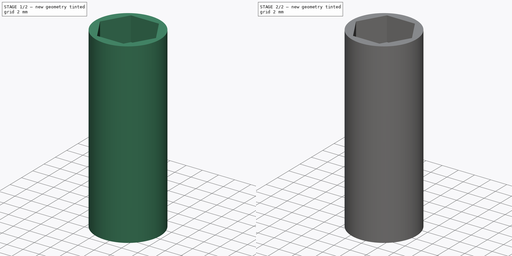
[diagram: build sequence overview — one tinted view per stage of 2, left to right]
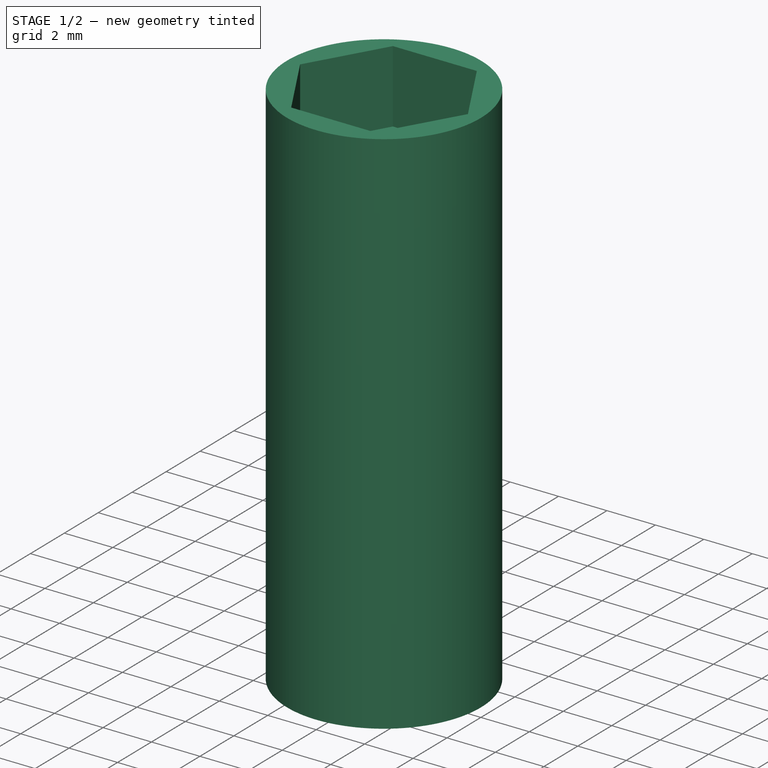
[diagram: stage 1 of 2 — iso view after this stage's code; geometry added in this stage tinted green]
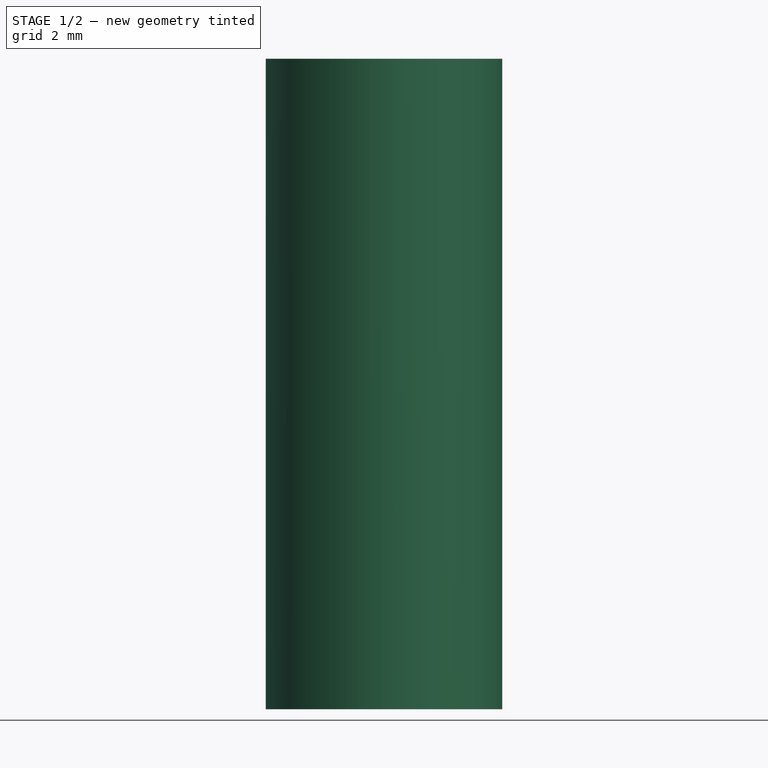
[diagram: stage 1 of 2 — front view after this stage's code; geometry added in this stage tinted green]
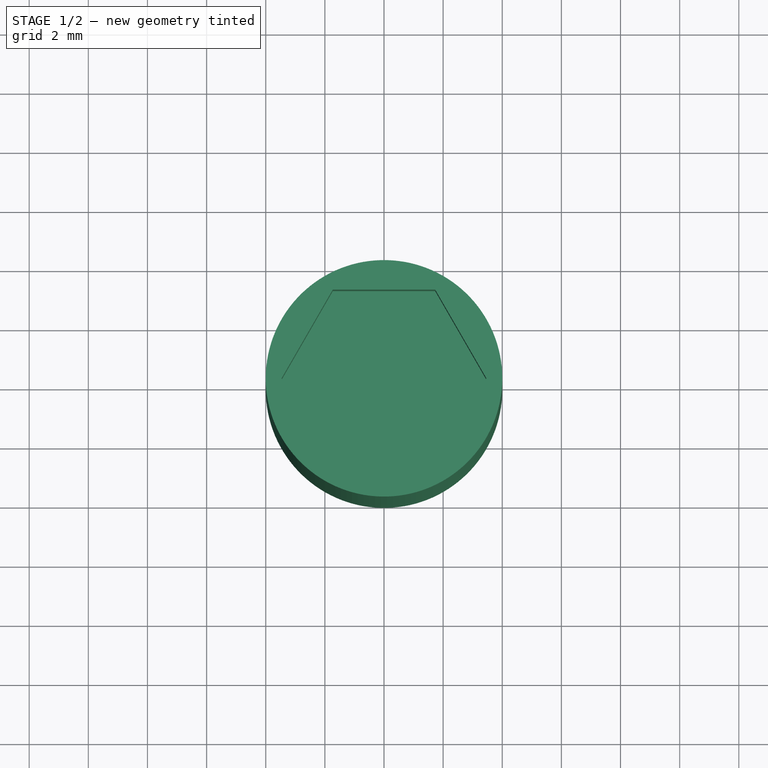
[diagram: stage 1 of 2 — top view after this stage's code; geometry added in this stage tinted green]
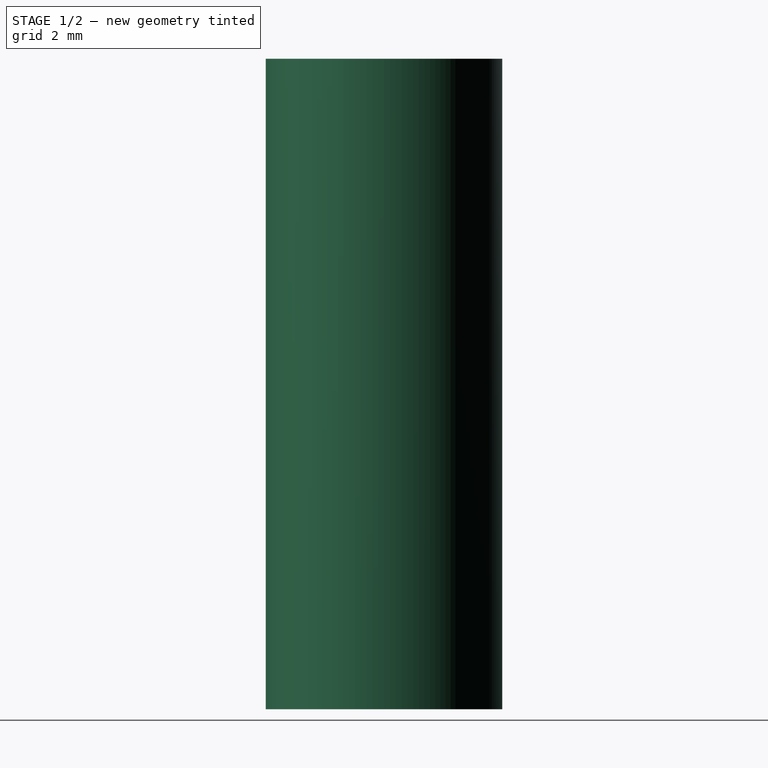
[diagram: stage 1 of 2 — right view after this stage's code; geometry added in this stage tinted green]
FCSTD DOCUMENT
Label: 6mmHex
objects: Sketcher::SketchObject×3, PartDesign::Pocket×2, PartDesign::Pad×1
note: 7 computed .brp shape members not serialized (recipe doc carries the construction recipe); baked Part::Feature solids carry a one-line shape summary decoded from their .brp

FEATURE [Sketcher::SketchObject] Sketch001
  sketch-geometry (1):
    g0: Circle CenterX=0 CenterY=0 CenterZ=0 NormalX=0 NormalY=0 NormalZ=1 Radius=4
  constraints (3):
    c: Radius(g0) = 4
    c: DistanceX(g0) = 0
    c: DistanceY(g0) = 0
FEATURE [PartDesign::Pad] Pad001
  Length = 22
  MirroredExtent = false
  Sketch = -> Sketch001
FEATURE [Sketcher::SketchObject] Sketch
  Placement = pos=(0,0,22) rot=(0,0,1;0rad)
  Support = -> Pad001 [Face3]
  sketch-geometry (12):
    g0: LineSegment StartX=-1.73205 StartY=3 StartZ=0 EndX=1.73205 EndY=3 EndZ=0
    g1: LineSegment StartX=1.73205 StartY=3 StartZ=0 EndX=3.4641 EndY=0 EndZ=0
    g2: LineSegment StartX=3.4641 StartY=0 StartZ=0 EndX=1.73205 EndY=-3 EndZ=0
    g3: LineSegment StartX=1.73205 StartY=-3 StartZ=0 EndX=-1.73205 EndY=-3 EndZ=0
    g4: LineSegment StartX=-1.73205 StartY=-3 StartZ=0 EndX=-3.4641 EndY=0 EndZ=0
    g5: LineSegment StartX=-3.4641 StartY=0 StartZ=0 EndX=-1.73205 EndY=3 EndZ=0
    g6: LineSegment [constr] StartX=-3.4641 StartY=0 StartZ=0 EndX=0 EndY=0 EndZ=0
    g7: LineSegment [constr] StartX=0 StartY=0 StartZ=0 EndX=3.4641 EndY=0 EndZ=0
    g8: LineSegment [constr] StartX=1.73205 StartY=3 StartZ=0 EndX=0 EndY=0 EndZ=0
    g9: LineSegment [constr] StartX=-1.73205 StartY=3 StartZ=0 EndX=0 EndY=0 EndZ=0
    g10: LineSegment [constr] StartX=-1.73205 StartY=-3 StartZ=0 EndX=0 EndY=0 EndZ=0
    g11: LineSegment [constr] StartX=0 StartY=0 StartZ=0 EndX=1.73205 EndY=-3 EndZ=0
  constraints (31):
    c: Horizontal(g0)
    c: Coincident(g0,g1)
    c: Coincident(g1,g2)
    c: Coincident(g2,g3)
    c: Horizontal(g3)
    c: Coincident(g3,g4)
    c: Coincident(g4,g5)
    c: Coincident(g5,g0)
    c: Parallel(g1,g4)
    c: Parallel(g5,g2)
    c: Horizontal(g6)
    c: Horizontal(g7)
    c: Coincident(g7,g6)
    c: Equal(g7,g6)
    c: Coincident(g7,g1)
    c: Coincident(g6,g4)
    c: Coincident(g9,g6)
    c: Coincident(g8,g6)
    c: Coincident(g9,g0)
    c: Coincident(g8,g0)
    c: Equal(g8,g9)
    c: Equal(g9,g6)
    c: Coincident(g11,g2)
    c: Coincident(g10,g3)
    c: Coincident(g10,g6)
    c: Coincident(g11,g6)
    c: Equal(g10,g6)
    c: Equal(g5,g0)
    c: DistanceX(g6) = 0
    c: DistanceY(g6) = 0
    c: DistanceY(g0,g3) = -6
FEATURE [PartDesign::Pocket] Pocket
  Length = 3
  Sketch = -> Sketch
  Type = 0
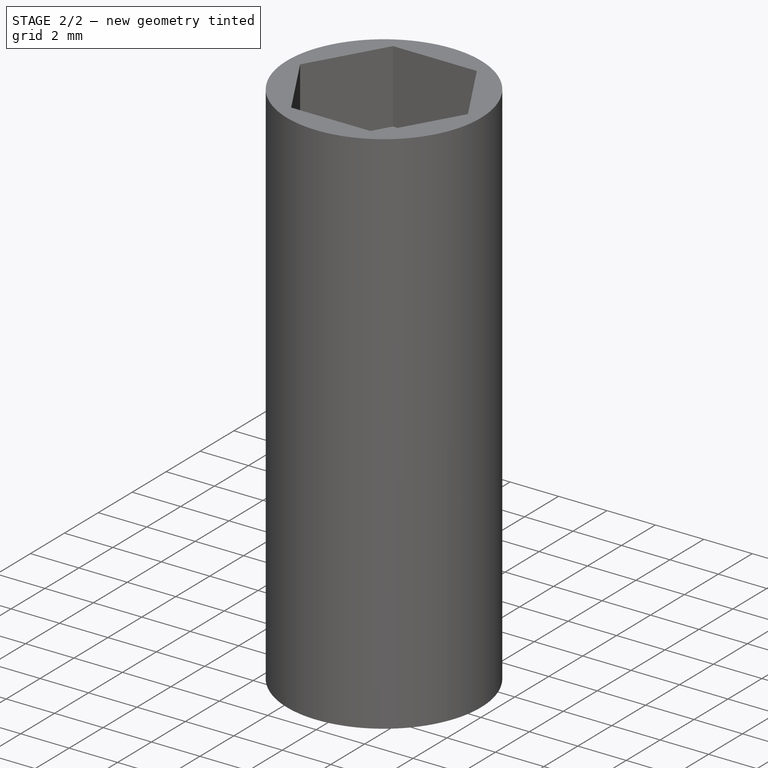
[diagram: stage 2 of 2 — iso view after this stage's code; geometry added in this stage tinted green]
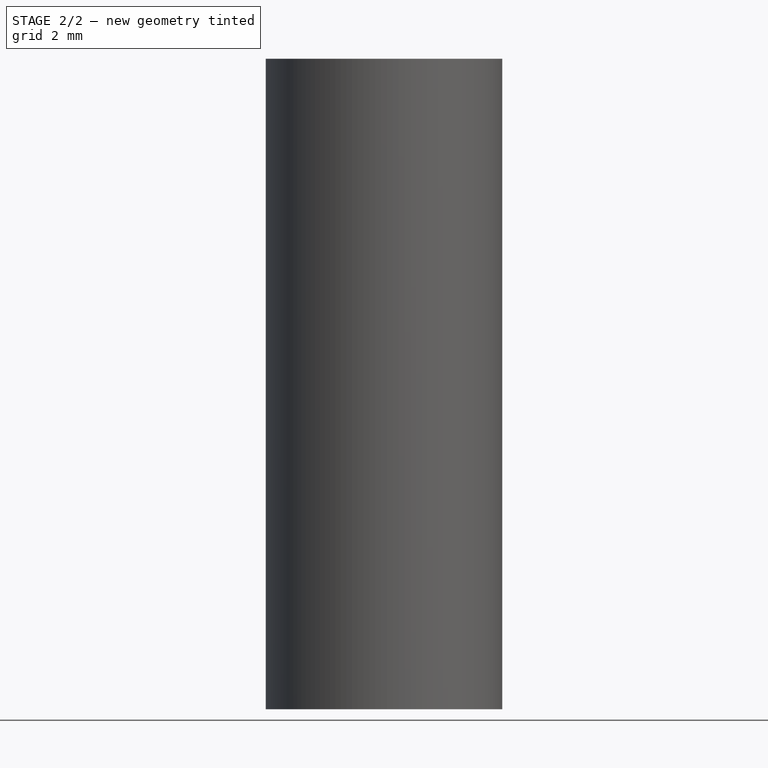
[diagram: stage 2 of 2 — front view after this stage's code; geometry added in this stage tinted green]
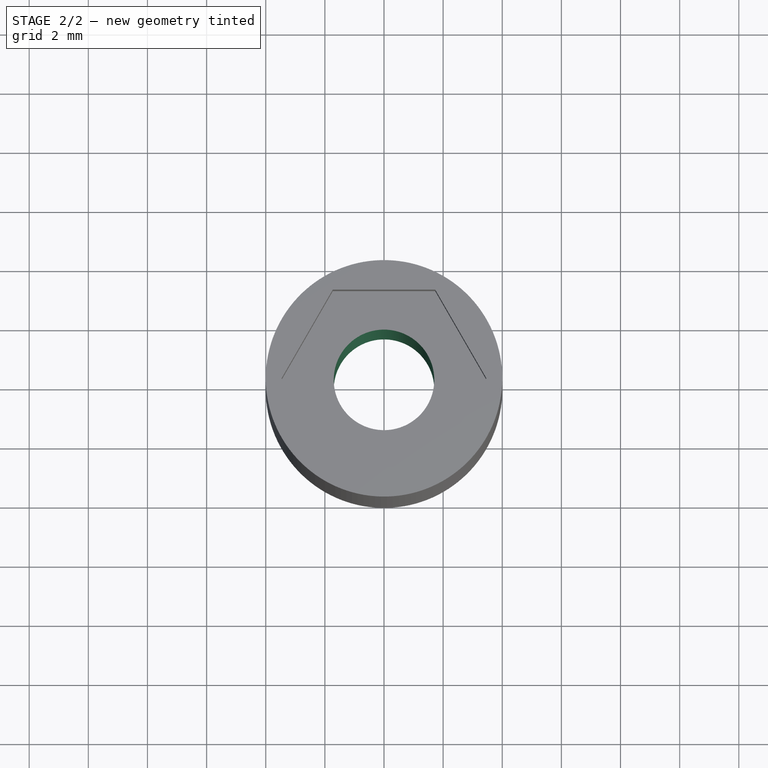
[diagram: stage 2 of 2 — top view after this stage's code; geometry added in this stage tinted green]
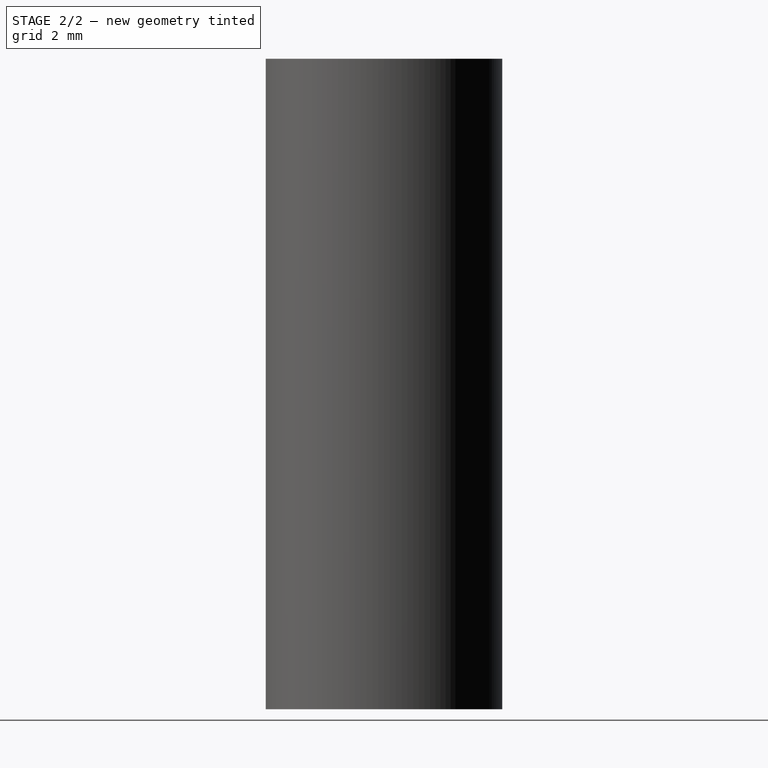
[diagram: stage 2 of 2 — right view after this stage's code; geometry added in this stage tinted green]
FEATURE [Sketcher::SketchObject] Sketch002
  Placement = pos=(0,0,0) rot=(1,0,0;3.14159rad)
  Support = -> Pocket [Face1]
  sketch-geometry (1):
    g0: Circle CenterX=0 CenterY=0 CenterZ=0 NormalX=0 NormalY=0 NormalZ=1 Radius=1.7
  constraints (3):
    c: Radius(g0) = 1.7
    c: DistanceX(g0) = 0
    c: DistanceY(g0) = 0
FEATURE [PartDesign::Pocket] Pocket001
  Length = 30
  Sketch = -> Sketch002
  Type = 0
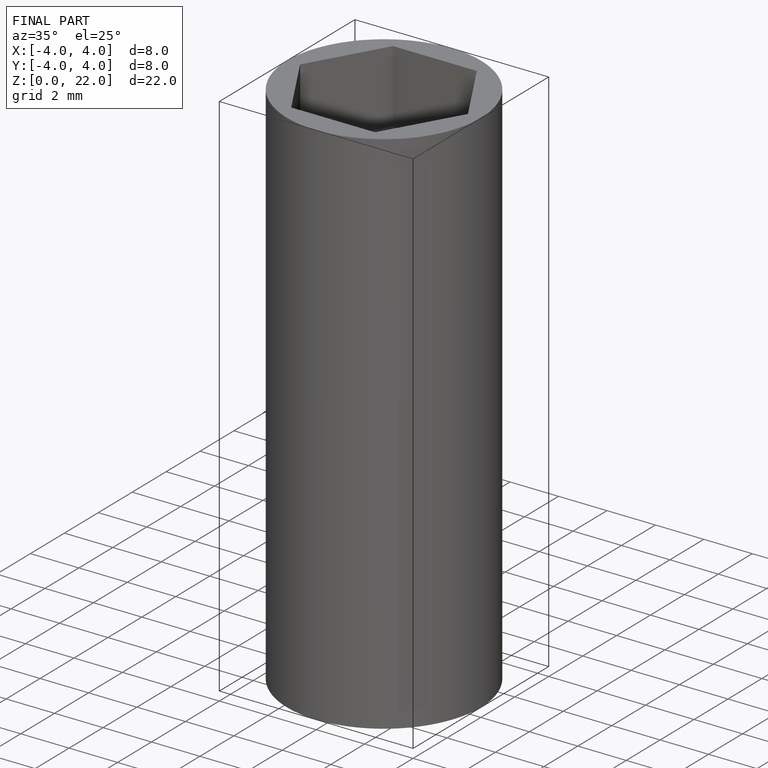
[diagram: finished part — iso view with bounding-box wireframe]
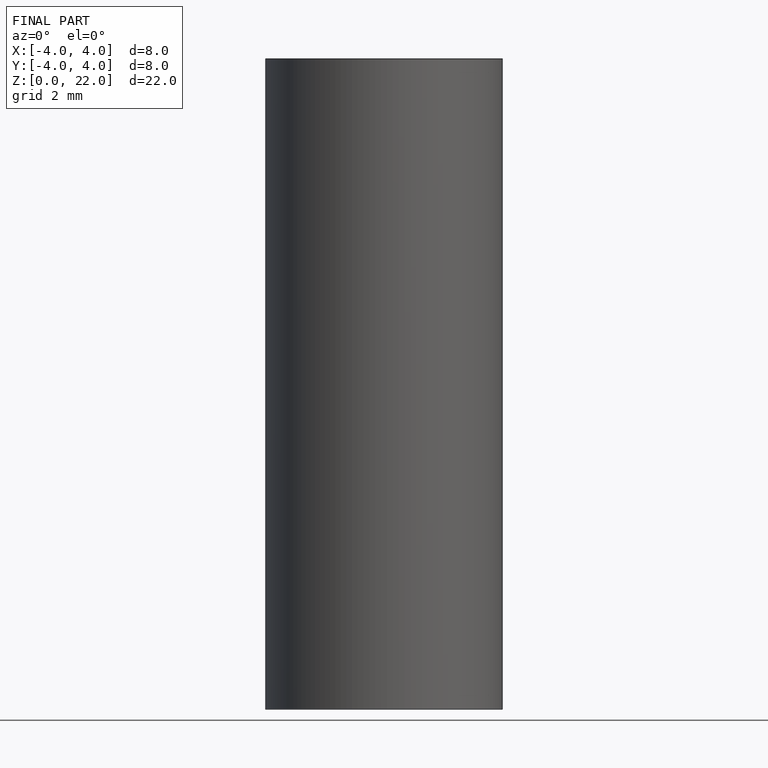
[diagram: finished part — front view with bounding-box wireframe]
